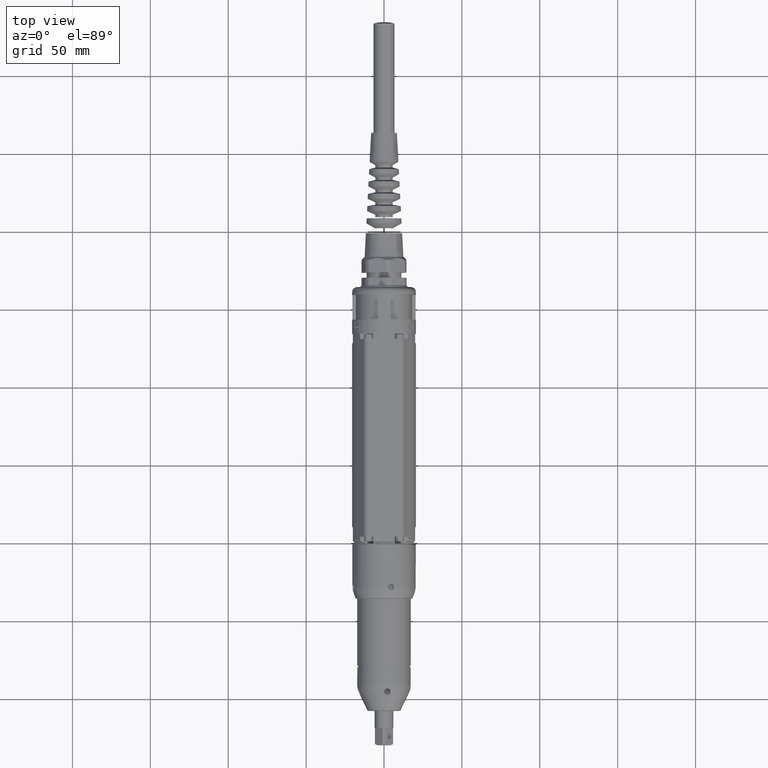
[diagram: clean part render]
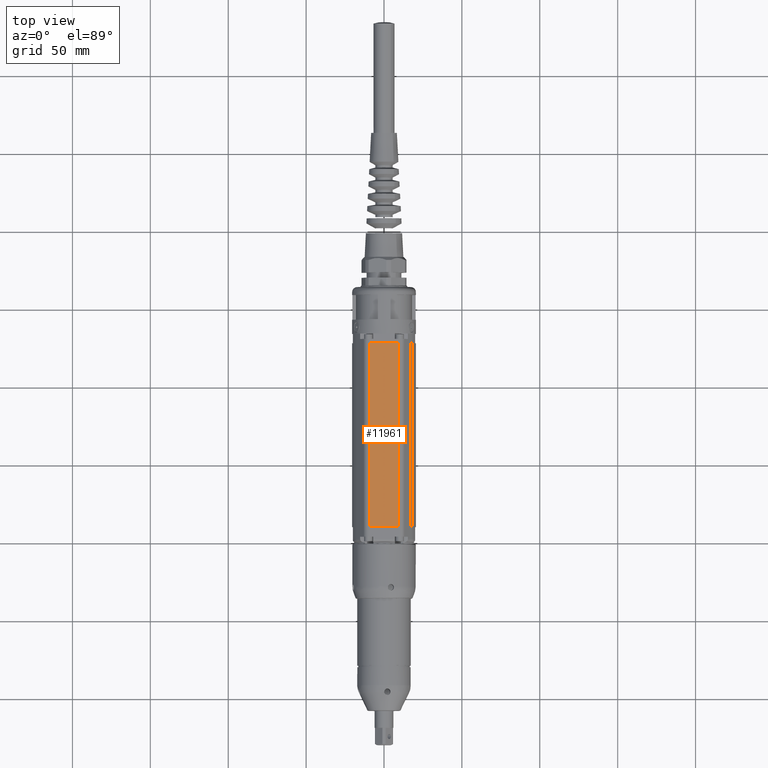
[diagram: same view with one face highlighted and labeled with its STEP entity id]
A machine part, top view. The second image highlights one B-rep face of the part: STEP entity #11961.
In plain terms, the highlighted planar face has unit normal (0, -0, 1).
Its self-contained STEP definition (entity closure, byte-faithful):
#350=PLANE('',#12778);
#1555=FACE_OUTER_BOUND('',#2270,.T.);
#2270=EDGE_LOOP('',(#8493,#8494,#8495,#8496));
#3114=LINE('',#18188,#4003);
#3115=LINE('',#18192,#4004);
#3116=LINE('',#18194,#4005);
#3117=LINE('',#18195,#4006);
#4003=VECTOR('',#14326,10.);
#4004=VECTOR('',#14331,10.);
#4005=VECTOR('',#14332,10.);
#4006=VECTOR('',#14333,10.);
#5553=VERTEX_POINT('',#18185);
#5554=VERTEX_POINT('',#18187);
#5555=VERTEX_POINT('',#18191);
#5556=VERTEX_POINT('',#18193);
#6702=EDGE_CURVE('',#5553,#5554,#3114,.T.);
#6704=EDGE_CURVE('',#5553,#5555,#3115,.T.);
#6705=EDGE_CURVE('',#5555,#5556,#3116,.T.);
#6706=EDGE_CURVE('',#5554,#5556,#3117,.T.);
#8493=ORIENTED_EDGE('',*,*,#6704,.T.);
#8494=ORIENTED_EDGE('',*,*,#6705,.T.);
#8495=ORIENTED_EDGE('',*,*,#6706,.F.);
#8496=ORIENTED_EDGE('',*,*,#6702,.F.);
#11961=ADVANCED_FACE('',(#1555),#350,.T.);
#12778=AXIS2_PLACEMENT_3D('',#18190,#14329,#14330);
#14326=DIRECTION('',(-1.15255911821437E-13,-1.,-6.66133814775086E-16));
#14329=DIRECTION('center_axis',(6.20004048101933E-13,-6.66133814846545E-16,
1.));
#14330=DIRECTION('ref_axis',(-1.,1.15255911821436E-13,6.20004048101933E-13));
#14331=DIRECTION('',(-1.,1.15255911821436E-13,6.20004048101933E-13));
#14332=DIRECTION('',(-1.15255911821437E-13,-1.,-6.66133814775086E-16));
#14333=DIRECTION('',(-1.,1.15255911821436E-13,6.20004048101933E-13));
#18185=CARTESIAN_POINT('',(9.5262794416417,127.999999999998,20.4999999999946));
#18187=CARTESIAN_POINT('',(9.5262794416281,9.99999999999773,20.4999999999945));
#18188=CARTESIAN_POINT('',(9.5262794416417,127.999999999998,20.4999999999946));
#18190=CARTESIAN_POINT('Origin',(9.5262794416417,127.999999999998,20.4999999999946));
#18191=CARTESIAN_POINT('',(-9.52627944161596,128.,20.5000000000064));
#18192=CARTESIAN_POINT('',(9.5262794416417,127.999999999998,20.4999999999946));
#18193=CARTESIAN_POINT('',(-9.52627944162956,9.99999999999993,20.5000000000063));
#18194=CARTESIAN_POINT('',(-9.52627944161596,128.,20.5000000000064));
#18195=CARTESIAN_POINT('',(9.5262794416281,9.99999999999773,20.4999999999945));